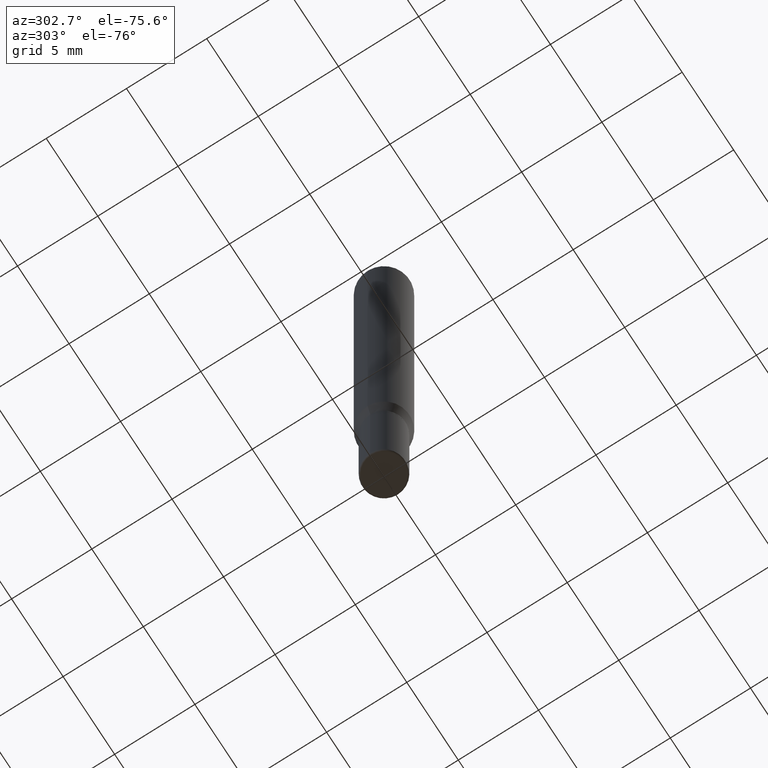
[diagram: clean part render]
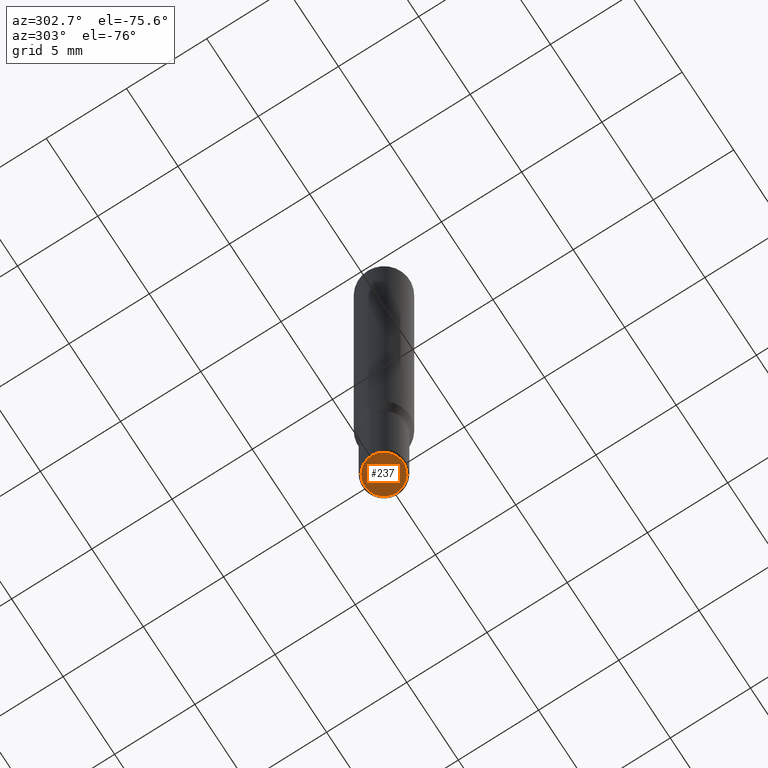
[diagram: same view with one face highlighted and labeled with its STEP entity id]
A machine part, auxiliary view. The second image highlights one B-rep face of the part: STEP entity #237.
In plain terms, the highlighted planar face has unit normal (-0, 0, 1).
Its self-contained STEP definition (entity closure, byte-faithful):
#6 = VERTEX_POINT ( 'NONE', #361 ) ;
#12 = CIRCLE ( 'NONE', #334, 0.04749999999999998668 ) ;
#13 = ORIENTED_EDGE ( 'NONE', *, *, #278, .F. ) ;
#42 = CARTESIAN_POINT ( 'NONE',  ( -0.04749999999999998668, -4.873221937037561039E-15, -1.500000000000000444 ) ) ;
#79 = DIRECTION ( 'NONE',  ( -2.445468806185136597E-29, 3.491481338843145583E-15, 1.000000000000000000 ) ) ;
#146 = DIRECTION ( 'NONE',  ( 1.000000000000000000, -6.982962677686265922E-15, 4.876176775795935793E-29 ) ) ;
#158 = CIRCLE ( 'NONE', #359, 0.04749999999999998668 ) ;
#186 = DIRECTION ( 'NONE',  ( 1.000000000000000000, -6.982962677686263555E-15, 0.000000000000000000 ) ) ;
#188 = ORIENTED_EDGE ( 'NONE', *, *, #441, .F. ) ;
#196 = EDGE_LOOP ( 'NONE', ( #13, #188 ) ) ;
#207 = DIRECTION ( 'NONE',  ( -2.445468806185136597E-29, 3.491481338843145583E-15, 1.000000000000000000 ) ) ;
#223 = PLANE ( 'NONE',  #240 ) ;
#237 = ADVANCED_FACE ( 'NONE', ( #516 ), #223, .F. ) ;
#240 = AXIS2_PLACEMENT_3D ( 'NONE', #423, #385, #146 ) ;
#278 = EDGE_CURVE ( 'NONE', #6, #406, #158, .T. ) ;
#327 = DIRECTION ( 'NONE',  ( 1.000000000000000000, -6.982962677686263555E-15, 0.000000000000000000 ) ) ;
#334 = AXIS2_PLACEMENT_3D ( 'NONE', #442, #207, #327 ) ;
#359 = AXIS2_PLACEMENT_3D ( 'NONE', #435, #79, #186 ) ;
#361 = CARTESIAN_POINT ( 'NONE',  ( 0.04749999999999998668, -5.568912735454817265E-15, -1.500000000000000444 ) ) ;
#385 = DIRECTION ( 'NONE',  ( -2.438088387897960049E-29, 3.491481338843145188E-15, 1.000000000000000000 ) ) ;
#406 = VERTEX_POINT ( 'NONE', #42 ) ;
#423 = CARTESIAN_POINT ( 'NONE',  ( 3.582686580359767159E-29, -5.359686688179454114E-15, -1.500000000000000444 ) ) ;
#435 = CARTESIAN_POINT ( 'NONE',  ( 3.668203209277706016E-29, -5.237222008264719754E-15, -1.500000000000000444 ) ) ;
#441 = EDGE_CURVE ( 'NONE', #406, #6, #12, .T. ) ;
#442 = CARTESIAN_POINT ( 'NONE',  ( 3.668203209277706016E-29, -5.237222008264719754E-15, -1.500000000000000444 ) ) ;
#516 = FACE_OUTER_BOUND ( 'NONE', #196, .T. ) ;